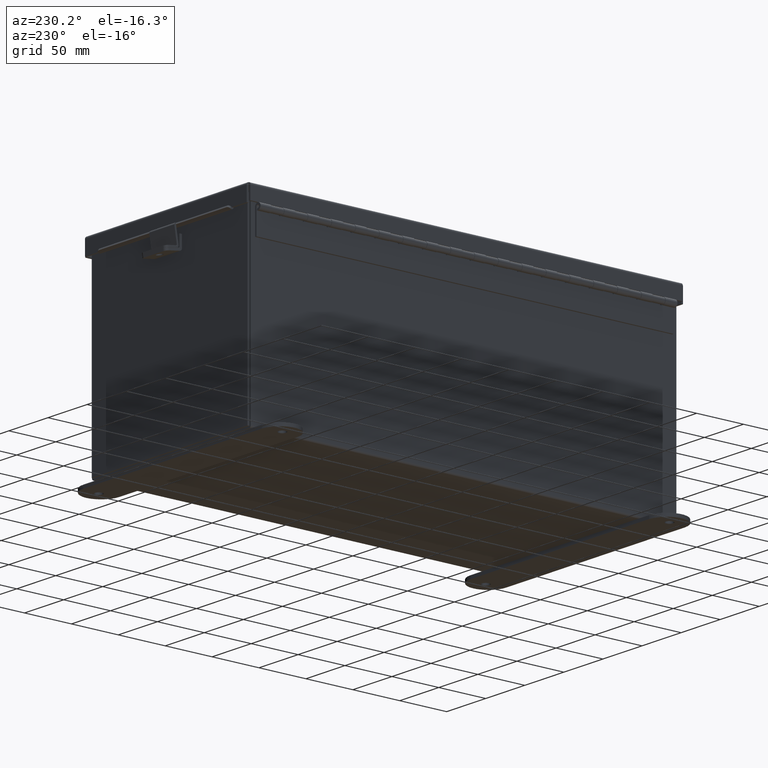
[diagram: clean part render]
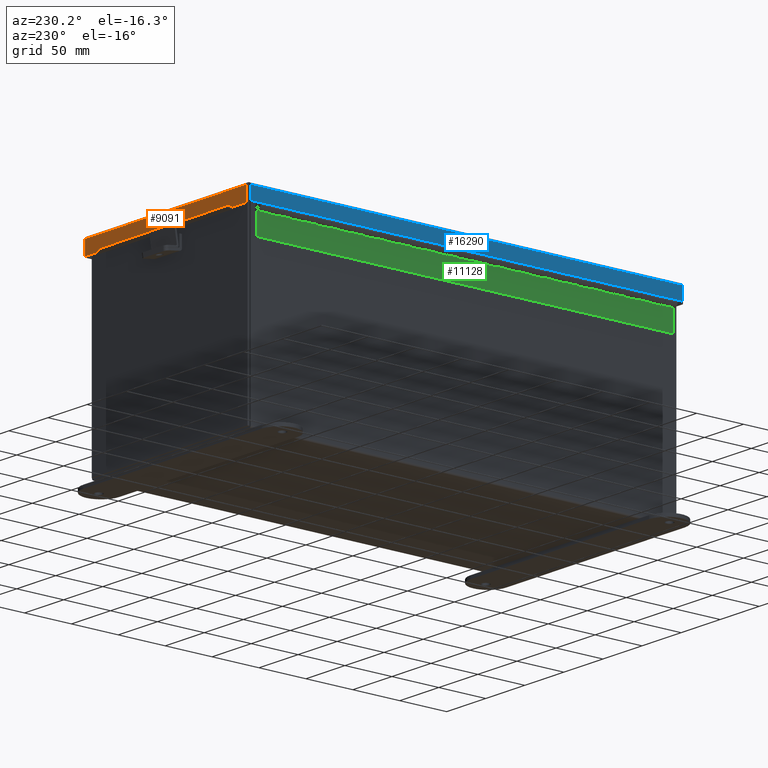
[diagram: same view with three faces highlighted in distinct colors, each labeled with its STEP entity id]
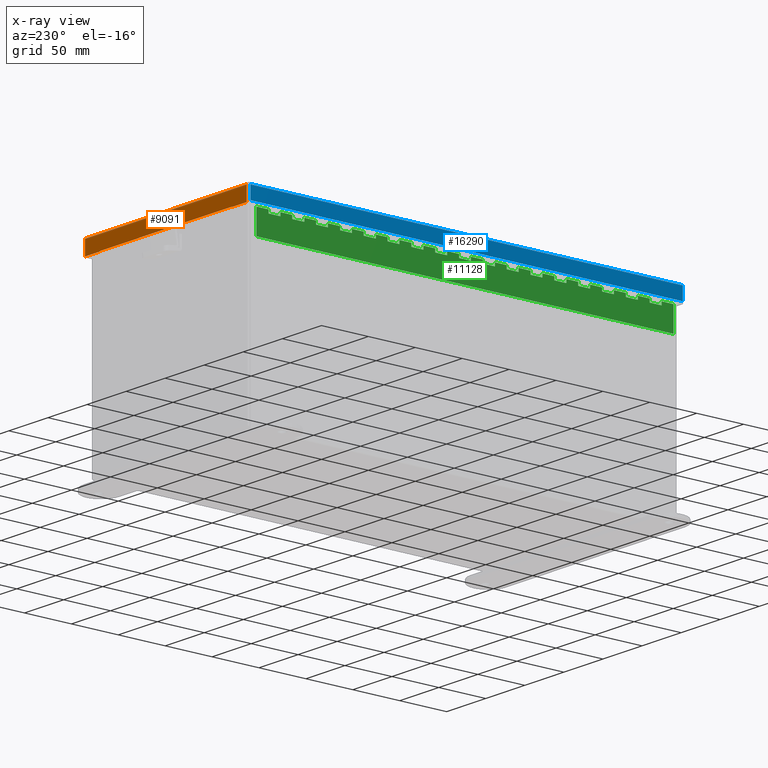
[diagram: x-ray of the same camera — body ghosted, the three highlighted faces saturated]
A machine part, auxiliary view with three faces highlighted in distinct colors.
The next image is the same camera in x-ray (body ghosted, the three faces saturated) — at least one of them is partly hidden behind the body in this view.
Their STEP definitions:

[orange] entity #9091 — the highlighted planar face has unit normal (-0, -1, -0).
#181 = CARTESIAN_POINT ( 'NONE',  ( 4.156250000000031100, 9.156250000000000000, 0.01299999999999901400 ) ) ;
#362 = VECTOR ( 'NONE', #1002, 39.37007874015748100 ) ;
#371 = ORIENTED_EDGE ( 'NONE', *, *, #8714, .T. ) ;
#672 = CARTESIAN_POINT ( 'NONE',  ( -4.074478932188157800, 9.156250000000000000, -3.278217592397115700E-014 ) ) ;
#934 = DIRECTION ( 'NONE',  ( -0.0000000000000000000, 3.569293475308496100E-015, 1.000000000000000000 ) ) ;
#1002 = DIRECTION ( 'NONE',  ( 1.000000000000000000, -1.279073152456795400E-030, 8.216084191471054600E-018 ) ) ;
#1072 = ORIENTED_EDGE ( 'NONE', *, *, #9066, .F. ) ;
#1364 = DIRECTION ( 'NONE',  ( 0.0000000000000000000, 3.569293475308496100E-015, 1.000000000000000000 ) ) ;
#1710 = CARTESIAN_POINT ( 'NONE',  ( 3.324478932188148900, 9.156250000000001800, 0.6122999999999994000 ) ) ;
#2406 = CARTESIAN_POINT ( 'NONE',  ( -4.268512490100411300E-018, 9.156250000000001800, 0.6122999999999994000 ) ) ;
#2596 = CARTESIAN_POINT ( 'NONE',  ( -3.324478932188148100, 9.156250000000001800, 0.5967115427318793200 ) ) ;
#2668 = PLANE ( 'NONE',  #12837 ) ;
#3467 = EDGE_CURVE ( 'NONE', #9286, #12418, #16808, .T. ) ;
#3538 = ORIENTED_EDGE ( 'NONE', *, *, #3467, .T. ) ;
#3921 = ORIENTED_EDGE ( 'NONE', *, *, #13332, .F. ) ;
#4167 = DIRECTION ( 'NONE',  ( 0.0000000000000000000, -3.569293475308496100E-015, -1.000000000000000000 ) ) ;
#4254 = LINE ( 'NONE', #1710, #15683 ) ;
#4561 = EDGE_CURVE ( 'NONE', #12713, #5659, #7419, .T. ) ;
#4761 = LINE ( 'NONE', #2406, #362 ) ;
#5189 = LINE ( 'NONE', #181, #12630 ) ;
#5372 = LINE ( 'NONE', #9956, #8866 ) ;
#5659 = VERTEX_POINT ( 'NONE', #2596 ) ;
#6149 = LINE ( 'NONE', #18805, #13610 ) ;
#6607 = CARTESIAN_POINT ( 'NONE',  ( -4.074478932188157800, 9.156250000000001800, 0.6123000000000015100 ) ) ;
#6865 = EDGE_CURVE ( 'NONE', #13250, #10626, #4761, .T. ) ;
#7419 = LINE ( 'NONE', #10310, #18906 ) ;
#7687 = CARTESIAN_POINT ( 'NONE',  ( 4.074478932188165800, 9.156250000000000000, 0.01300000000000010700 ) ) ;
#8190 = CARTESIAN_POINT ( 'NONE',  ( 3.324478932188148900, 9.156250000000001800, 0.6122999999999994000 ) ) ;
#8369 = EDGE_CURVE ( 'NONE', #13250, #12713, #4254, .T. ) ;
#8714 = EDGE_CURVE ( 'NONE', #12418, #12990, #10516, .T. ) ;
#8866 = VECTOR ( 'NONE', #13000, 39.37007874015748100 ) ;
#9029 = DIRECTION ( 'NONE',  ( -1.401985044024191200E-013, 1.027984367116126100E-029, -1.000000000000000000 ) ) ;
#9066 = EDGE_CURVE ( 'NONE', #5659, #12990, #5372, .T. ) ;
#9091 = ADVANCED_FACE ( 'NONE', ( #12823 ), #2668, .F. ) ;
#9286 = VERTEX_POINT ( 'NONE', #14987 ) ;
#9682 = ORIENTED_EDGE ( 'NONE', *, *, #9847, .F. ) ;
#9720 = EDGE_LOOP ( 'NONE', ( #17201, #18116, #3921, #9682, #3538, #371, #1072, #18878 ) ) ;
#9847 = EDGE_CURVE ( 'NONE', #9286, #16108, #5189, .T. ) ;
#9956 = CARTESIAN_POINT ( 'NONE',  ( -3.324478932188148100, 9.156250000000001800, 0.5967115427318793200 ) ) ;
#10310 = CARTESIAN_POINT ( 'NONE',  ( 3.324478932188146700, 9.156250000000001800, 0.5967115427318804300 ) ) ;
#10516 = LINE ( 'NONE', #12290, #14031 ) ;
#10626 = VERTEX_POINT ( 'NONE', #15945 ) ;
#11552 = CARTESIAN_POINT ( 'NONE',  ( 9.604153102725926100E-018, 9.156250000000000000, -3.278217592397115700E-014 ) ) ;
#12290 = CARTESIAN_POINT ( 'NONE',  ( -4.268512490100411300E-018, 9.156250000000001800, 0.6122999999999994000 ) ) ;
#12418 = VERTEX_POINT ( 'NONE', #6607 ) ;
#12630 = VECTOR ( 'NONE', #16523, 39.37007874015748100 ) ;
#12713 = VERTEX_POINT ( 'NONE', #19302 ) ;
#12823 = FACE_OUTER_BOUND ( 'NONE', #9720, .T. ) ;
#12837 = AXIS2_PLACEMENT_3D ( 'NONE', #11552, #13070, #4167 ) ;
#12990 = VERTEX_POINT ( 'NONE', #15058 ) ;
#13000 = DIRECTION ( 'NONE',  ( 0.0000000000000000000, -1.027984367116126100E-029, 1.000000000000000000 ) ) ;
#13070 = DIRECTION ( 'NONE',  ( 1.210602460523066100E-030, -1.000000000000000000, 3.569293475308496100E-015 ) ) ;
#13250 = VERTEX_POINT ( 'NONE', #8190 ) ;
#13332 = EDGE_CURVE ( 'NONE', #16108, #10626, #6149, .T. ) ;
#13610 = VECTOR ( 'NONE', #934, 39.37007874015748100 ) ;
#13813 = DIRECTION ( 'NONE',  ( 1.000000000000000000, -1.279073152456795400E-030, 8.216084191471054600E-018 ) ) ;
#14031 = VECTOR ( 'NONE', #13813, 39.37007874015748100 ) ;
#14824 = DIRECTION ( 'NONE',  ( -1.000000000000000000, 1.278004435517613800E-030, -0.0000000000000000000 ) ) ;
#14987 = CARTESIAN_POINT ( 'NONE',  ( -4.074478932188153400, 9.156250000000000000, 0.01300000000000010700 ) ) ;
#15058 = CARTESIAN_POINT ( 'NONE',  ( -3.324478932188146300, 9.156250000000001800, 0.6122999999999994000 ) ) ;
#15683 = VECTOR ( 'NONE', #9029, 39.37007874015748100 ) ;
#15945 = CARTESIAN_POINT ( 'NONE',  ( 4.074478932188161400, 9.156250000000001800, 0.6123000000000005100 ) ) ;
#16108 = VERTEX_POINT ( 'NONE', #7687 ) ;
#16323 = VECTOR ( 'NONE', #1364, 39.37007874015748100 ) ;
#16523 = DIRECTION ( 'NONE',  ( 1.000000000000000000, -1.278004435517613800E-030, -0.0000000000000000000 ) ) ;
#16808 = LINE ( 'NONE', #672, #16323 ) ;
#17201 = ORIENTED_EDGE ( 'NONE', *, *, #8369, .F. ) ;
#18116 = ORIENTED_EDGE ( 'NONE', *, *, #6865, .T. ) ;
#18805 = CARTESIAN_POINT ( 'NONE',  ( 4.074478932188161400, 9.156250000000000000, 0.0000000000000000000 ) ) ;
#18878 = ORIENTED_EDGE ( 'NONE', *, *, #4561, .F. ) ;
#18906 = VECTOR ( 'NONE', #14824, 39.37007874015748100 ) ;
#19302 = CARTESIAN_POINT ( 'NONE',  ( 3.324478932188144500, 9.156250000000001800, 0.5967115427318804300 ) ) ;

[blue] entity #16290 — the highlighted planar face has unit normal (1, -0, 0).
#21 = CARTESIAN_POINT ( 'NONE',  ( 4.156250000000019500, -9.074478932188133800, 0.5502999999999999000 ) ) ;
#1418 = ORIENTED_EDGE ( 'NONE', *, *, #11162, .T. ) ;
#1579 = LINE ( 'NONE', #11436, #5495 ) ;
#1587 = VERTEX_POINT ( 'NONE', #3594 ) ;
#2162 = DIRECTION ( 'NONE',  ( -1.000000000000000000, 7.614158368944349400E-031, 3.971430846686186000E-015 ) ) ;
#2191 = EDGE_CURVE ( 'NONE', #1587, #11382, #1579, .T. ) ;
#2375 = VECTOR ( 'NONE', #12836, 39.37007874015748100 ) ;
#2885 = EDGE_CURVE ( 'NONE', #13644, #11382, #13776, .T. ) ;
#3341 = VERTEX_POINT ( 'NONE', #10021 ) ;
#3594 = CARTESIAN_POINT ( 'NONE',  ( 4.156250000000024900, 9.074478932188133800, 0.5502999999999999000 ) ) ;
#3884 = DIRECTION ( 'NONE',  ( 3.971430846686186000E-015, -1.005797654156785100E-029, 1.000000000000000000 ) ) ;
#4142 = CARTESIAN_POINT ( 'NONE',  ( 4.156250000000021300, -9.074478932188133800, -1.092739197465705300E-015 ) ) ;
#4866 = ORIENTED_EDGE ( 'NONE', *, *, #11281, .F. ) ;
#5050 = CARTESIAN_POINT ( 'NONE',  ( 4.156250000000025800, 2.134256245050205600E-018, -1.748382715945128500E-014 ) ) ;
#5495 = VECTOR ( 'NONE', #14268, 39.37007874015748100 ) ;
#5832 = VECTOR ( 'NONE', #3884, 39.37007874015748100 ) ;
#6025 = CARTESIAN_POINT ( 'NONE',  ( 4.156250000000025800, -9.074478932188133800, 0.01299999999999901400 ) ) ;
#7178 = CARTESIAN_POINT ( 'NONE',  ( 4.156250000000031100, -9.156250000000000000, 0.01299999999999901400 ) ) ;
#10021 = CARTESIAN_POINT ( 'NONE',  ( 4.156250000000031100, 9.074478932188133800, 0.01299999999999901400 ) ) ;
#10171 = DIRECTION ( 'NONE',  ( 1.278004435517692100E-030, -1.000000000000000000, 1.018123605800868400E-029 ) ) ;
#10505 = VECTOR ( 'NONE', #10171, 39.37007874015748100 ) ;
#11052 = PLANE ( 'NONE',  #15004 ) ;
#11060 = EDGE_LOOP ( 'NONE', ( #4866, #1418, #14549, #12238 ) ) ;
#11162 = EDGE_CURVE ( 'NONE', #3341, #1587, #13310, .T. ) ;
#11281 = EDGE_CURVE ( 'NONE', #3341, #13644, #18488, .T. ) ;
#11326 = CARTESIAN_POINT ( 'NONE',  ( 4.156250000000025800, 9.074478932188133800, -1.748382715945128500E-014 ) ) ;
#11382 = VERTEX_POINT ( 'NONE', #21 ) ;
#11436 = CARTESIAN_POINT ( 'NONE',  ( 4.156250000000024900, -1.067128122525102800E-017, 0.5502999999999999000 ) ) ;
#12238 = ORIENTED_EDGE ( 'NONE', *, *, #2885, .F. ) ;
#12536 = DIRECTION ( 'NONE',  ( 3.971430846686186000E-015, -1.005797654156785100E-029, 1.000000000000000000 ) ) ;
#12836 = DIRECTION ( 'NONE',  ( 3.971430846686186000E-015, -1.005797654156785100E-029, 1.000000000000000000 ) ) ;
#13310 = LINE ( 'NONE', #11326, #2375 ) ;
#13644 = VERTEX_POINT ( 'NONE', #6025 ) ;
#13776 = LINE ( 'NONE', #4142, #5832 ) ;
#14268 = DIRECTION ( 'NONE',  ( 1.278004435517692100E-030, -1.000000000000000000, 1.018123605800868400E-029 ) ) ;
#14549 = ORIENTED_EDGE ( 'NONE', *, *, #2191, .T. ) ;
#15004 = AXIS2_PLACEMENT_3D ( 'NONE', #5050, #2162, #12536 ) ;
#16290 = ADVANCED_FACE ( 'NONE', ( #17964 ), #11052, .F. ) ;
#17964 = FACE_OUTER_BOUND ( 'NONE', #11060, .T. ) ;
#18488 = LINE ( 'NONE', #7178, #10505 ) ;

[green] entity #11128 — the highlighted planar face has unit normal (1, -0, 0).
#41 = CARTESIAN_POINT ( 'NONE',  ( 1.202013117212275900E-013, 17.00000000000000000, 0.0000000000000000000 ) ) ;
#67 = ORIENTED_EDGE ( 'NONE', *, *, #3782, .F. ) ;
#116 = LINE ( 'NONE', #12136, #1063 ) ;
#145 = CARTESIAN_POINT ( 'NONE',  ( 0.1364999999999989300, 5.000000000000000000, 8.195543980992789300E-015 ) ) ;
#189 = DIRECTION ( 'NONE',  ( -1.092695613247542100E-028, 1.000000000000000000, -1.461323557691785800E-030 ) ) ;
#241 = ORIENTED_EDGE ( 'NONE', *, *, #11395, .F. ) ;
#323 = EDGE_CURVE ( 'NONE', #15768, #9078, #16563, .T. ) ;
#326 = CARTESIAN_POINT ( 'NONE',  ( 0.1365000000000000400, 12.00000000000000200, 0.0000000000000000000 ) ) ;
#346 = LINE ( 'NONE', #15674, #3819 ) ;
#401 = EDGE_CURVE ( 'NONE', #5974, #6972, #18694, .T. ) ;
#470 = DIRECTION ( 'NONE',  ( -1.000000000000000000, 1.092695613247542100E-028, 3.549874073494553100E-029 ) ) ;
#578 = ORIENTED_EDGE ( 'NONE', *, *, #16580, .T. ) ;
#595 = CARTESIAN_POINT ( 'NONE',  ( 0.2729999999999837000, 5.500000000000001800, 8.195543980992789300E-015 ) ) ;
#680 = LINE ( 'NONE', #17570, #4163 ) ;
#729 = CARTESIAN_POINT ( 'NONE',  ( 0.2729999999999989700, 5.000000000000000000, 8.195543980992789300E-015 ) ) ;
#738 = VECTOR ( 'NONE', #19193, 39.37007874015748100 ) ;
#740 = DIRECTION ( 'NONE',  ( -1.000000000000000000, 1.092695613247542100E-028, 3.549874073494553100E-029 ) ) ;
#777 = VERTEX_POINT ( 'NONE', #10730 ) ;
#778 = DIRECTION ( 'NONE',  ( -1.000000000000000000, 1.092695613247542100E-028, 3.549874073494553100E-029 ) ) ;
#805 = VECTOR ( 'NONE', #3625, 39.37007874015748100 ) ;
#828 = DIRECTION ( 'NONE',  ( -1.092695613247542100E-028, 1.000000000000000000, -1.461323557691785800E-030 ) ) ;
#865 = EDGE_CURVE ( 'NONE', #8922, #17374, #11141, .T. ) ;
#935 = VERTEX_POINT ( 'NONE', #18483 ) ;
#944 = CARTESIAN_POINT ( 'NONE',  ( 0.1364999999999836300, 6.500000000000000900, 0.0000000000000000000 ) ) ;
#1013 = EDGE_CURVE ( 'NONE', #15729, #12504, #5308, .T. ) ;
#1026 = CARTESIAN_POINT ( 'NONE',  ( 0.2730000000000000800, -9.000000000000001800, 8.195543980992789300E-015 ) ) ;
#1028 = VERTEX_POINT ( 'NONE', #16196 ) ;
#1029 = VECTOR ( 'NONE', #8196, 39.37007874015748100 ) ;
#1032 = VECTOR ( 'NONE', #1164, 39.37007874015748100 ) ;
#1033 = VERTEX_POINT ( 'NONE', #4983 ) ;
#1047 = CARTESIAN_POINT ( 'NONE',  ( 1.354996604857474700E-013, 3.999999999999991600, 0.0000000000000000000 ) ) ;
#1063 = VECTOR ( 'NONE', #13651, 39.37007874015748100 ) ;
#1098 = LINE ( 'NONE', #15531, #12465 ) ;
#1107 = ORIENTED_EDGE ( 'NONE', *, *, #7369, .T. ) ;
#1135 = VECTOR ( 'NONE', #7432, 39.37007874015748100 ) ;
#1164 = DIRECTION ( 'NONE',  ( -1.000000000000000000, 8.005415366049243300E-015, 3.549874073494553100E-029 ) ) ;
#1175 = ORIENTED_EDGE ( 'NONE', *, *, #6266, .F. ) ;
#1192 = VECTOR ( 'NONE', #189, 39.37007874015748100 ) ;
#1219 = VECTOR ( 'NONE', #7730, 39.37007874015748100 ) ;
#1256 = DIRECTION ( 'NONE',  ( -1.092695613247542100E-028, 1.000000000000000000, -1.461323557691785800E-030 ) ) ;
#1258 = CARTESIAN_POINT ( 'NONE',  ( 0.2730000000000000800, 13.50000000000000200, 8.195543980992789300E-015 ) ) ;
#1343 = DIRECTION ( 'NONE',  ( -1.000000000000000000, 1.092695613247542100E-028, 3.549874073494553100E-029 ) ) ;
#1401 = CARTESIAN_POINT ( 'NONE',  ( 0.1365000000000000400, 1.500000000000000900, 8.195543980992789300E-015 ) ) ;
#1511 = VECTOR ( 'NONE', #13325, 39.37007874015748100 ) ;
#1518 = CARTESIAN_POINT ( 'NONE',  ( 0.1365000000000000400, 10.00000000000000000, 0.0000000000000000000 ) ) ;
#1532 = DIRECTION ( 'NONE',  ( -1.092695613247542100E-028, 1.000000000000000000, -1.461323557691785800E-030 ) ) ;
#1584 = ORIENTED_EDGE ( 'NONE', *, *, #4178, .F. ) ;
#1597 = DIRECTION ( 'NONE',  ( -1.000000000000000000, 1.092695613247542100E-028, 3.549874073494553100E-029 ) ) ;
#1602 = VERTEX_POINT ( 'NONE', #11970 ) ;
#1632 = LINE ( 'NONE', #6999, #9050 ) ;
#1635 = EDGE_CURVE ( 'NONE', #15768, #16924, #13928, .T. ) ;
#1678 = VECTOR ( 'NONE', #1532, 39.37007874015748100 ) ;
#1680 = DIRECTION ( 'NONE',  ( -1.000000000000000000, 8.005415366049243300E-015, 3.549874073494553100E-029 ) ) ;
#1724 = CARTESIAN_POINT ( 'NONE',  ( 1.136499999999983900, 17.50000000000000000, 8.195543980992789300E-015 ) ) ;
#1772 = ORIENTED_EDGE ( 'NONE', *, *, #18786, .T. ) ;
#1827 = ORIENTED_EDGE ( 'NONE', *, *, #6106, .F. ) ;
#1870 = VECTOR ( 'NONE', #17368, 39.37007874015748100 ) ;
#2043 = CARTESIAN_POINT ( 'NONE',  ( 0.0000000000000000000, 0.5000000000000017800, 0.0000000000000000000 ) ) ;
#2049 = LINE ( 'NONE', #19358, #13448 ) ;
#2081 = ORIENTED_EDGE ( 'NONE', *, *, #9707, .F. ) ;
#2091 = VECTOR ( 'NONE', #17690, 39.37007874015748100 ) ;
#2139 = CARTESIAN_POINT ( 'NONE',  ( 0.1365000000000000400, 0.5000000000000017800, 0.0000000000000000000 ) ) ;
#2175 = LINE ( 'NONE', #12065, #13091 ) ;
#2177 = VERTEX_POINT ( 'NONE', #14894 ) ;
#2185 = CARTESIAN_POINT ( 'NONE',  ( 1.136500000000000300, 0.0000000000000000000, 8.195543980992789300E-015 ) ) ;
#2200 = ORIENTED_EDGE ( 'NONE', *, *, #3836, .F. ) ;
#2207 = VERTEX_POINT ( 'NONE', #19195 ) ;
#2243 = ORIENTED_EDGE ( 'NONE', *, *, #11067, .F. ) ;
#2248 = DIRECTION ( 'NONE',  ( -1.092695613247542100E-028, 1.000000000000000000, -1.461323557691785800E-030 ) ) ;
#2259 = CARTESIAN_POINT ( 'NONE',  ( 0.2730000000000000800, 12.50000000000000000, 0.0000000000000000000 ) ) ;
#2377 = PLANE ( 'NONE',  #18842 ) ;
#2387 = VECTOR ( 'NONE', #7931, 39.37007874015748100 ) ;
#2389 = EDGE_CURVE ( 'NONE', #13154, #6585, #17655, .T. ) ;
#2409 = ORIENTED_EDGE ( 'NONE', *, *, #6708, .F. ) ;
#2481 = ORIENTED_EDGE ( 'NONE', *, *, #15415, .F. ) ;
#2547 = LINE ( 'NONE', #19081, #2091 ) ;
#2551 = ORIENTED_EDGE ( 'NONE', *, *, #11178, .T. ) ;
#2618 = LINE ( 'NONE', #12211, #18021 ) ;
#2632 = DIRECTION ( 'NONE',  ( -1.000000000000000000, 8.005415366049243300E-015, 3.549874073494553100E-029 ) ) ;
#2721 = EDGE_CURVE ( 'NONE', #11514, #13033, #8645, .T. ) ;
#2738 = CARTESIAN_POINT ( 'NONE',  ( 0.1365000000000000400, 9.000000000000001800, 8.195543980992789300E-015 ) ) ;
#2794 = DIRECTION ( 'NONE',  ( -1.000000000000000000, 1.092695613247542100E-028, 3.549874073494553100E-029 ) ) ;
#2800 = ORIENTED_EDGE ( 'NONE', *, *, #2926, .T. ) ;
#2866 = ORIENTED_EDGE ( 'NONE', *, *, #14112, .F. ) ;
#2889 = LINE ( 'NONE', #9607, #10337 ) ;
#2917 = CARTESIAN_POINT ( 'NONE',  ( 0.1365000000000000400, 0.0000000000000000000, 0.0000000000000000000 ) ) ;
#2921 = VERTEX_POINT ( 'NONE', #16177 ) ;
#2926 = EDGE_CURVE ( 'NONE', #5726, #3980, #9337, .T. ) ;
#2937 = VERTEX_POINT ( 'NONE', #5322 ) ;
#2941 = CARTESIAN_POINT ( 'NONE',  ( 0.2730000000000000800, -6.999999999999998200, 8.195543980992789300E-015 ) ) ;
#2975 = VERTEX_POINT ( 'NONE', #3219 ) ;
#3043 = DIRECTION ( 'NONE',  ( -1.000000000000000000, 1.092695613247542100E-028, 3.549874073494553100E-029 ) ) ;
#3053 = VERTEX_POINT ( 'NONE', #16573 ) ;
#3116 = VERTEX_POINT ( 'NONE', #14940 ) ;
#3158 = LINE ( 'NONE', #13944, #18577 ) ;
#3180 = ORIENTED_EDGE ( 'NONE', *, *, #11231, .F. ) ;
#3189 = DIRECTION ( 'NONE',  ( -1.000000000000000000, 1.092695613247542100E-028, 3.549874073494553100E-029 ) ) ;
#3219 = CARTESIAN_POINT ( 'NONE',  ( 0.1364999999999836300, 5.999999999999999100, 0.0000000000000000000 ) ) ;
#3233 = CARTESIAN_POINT ( 'NONE',  ( 0.1365000000000000400, 0.0000000000000000000, 0.0000000000000000000 ) ) ;
#3269 = VECTOR ( 'NONE', #16750, 39.37007874015748100 ) ;
#3283 = EDGE_CURVE ( 'NONE', #12230, #10389, #8159, .T. ) ;
#3285 = EDGE_CURVE ( 'NONE', #7579, #15729, #16106, .T. ) ;
#3323 = DIRECTION ( 'NONE',  ( 1.000000000000000000, -1.092695613247542100E-028, -3.549874073494553100E-029 ) ) ;
#3442 = CARTESIAN_POINT ( 'NONE',  ( 1.365923996832131500E-013, 10.00000000000000000, 0.0000000000000000000 ) ) ;
#3453 = ORIENTED_EDGE ( 'NONE', *, *, #5193, .F. ) ;
#3498 = CARTESIAN_POINT ( 'NONE',  ( 0.2730000000000000800, 7.999999999999997300, 0.0000000000000000000 ) ) ;
#3505 = VERTEX_POINT ( 'NONE', #1401 ) ;
#3540 = VECTOR ( 'NONE', #10750, 39.37007874015748100 ) ;
#3572 = VERTEX_POINT ( 'NONE', #10438 ) ;
#3583 = LINE ( 'NONE', #1047, #11026 ) ;
#3625 = DIRECTION ( 'NONE',  ( -1.092695613247542100E-028, 1.000000000000000000, -1.461323557691785800E-030 ) ) ;
#3694 = EDGE_CURVE ( 'NONE', #2207, #9448, #16561, .T. ) ;
#3735 = EDGE_LOOP ( 'NONE', ( #16190, #14140, #13800, #1107, #19182, #5961, #10930, #10341, #1772, #18514, #10274, #3816, #12514, #5899, #4342, #5084, #10615, #5793, #2866, #241, #578, #7127, #14530, #11868, #9862, #11043, #8014, #2481, #2551, #12225, #18932, #1827, #17720, #10101, #10173, #3453, #4803, #7532, #9224, #2200, #15999, #14732, #6407, #1175, #14141, #3943, #12173, #3180, #5317, #14360, #12622, #15552, #15715, #2243, #9357, #4544, #7201, #5032, #2081, #2409, #2800, #18160, #11996, #18555, #17448, #17341, #7819, #67, #13628, #12300, #1584, #19149 ) ) ;
#3779 = VERTEX_POINT ( 'NONE', #2738 ) ;
#3782 = EDGE_CURVE ( 'NONE', #2921, #7579, #15154, .T. ) ;
#3816 = ORIENTED_EDGE ( 'NONE', *, *, #5692, .F. ) ;
#3819 = VECTOR ( 'NONE', #5213, 39.37007874015748100 ) ;
#3821 = CARTESIAN_POINT ( 'NONE',  ( 0.0000000000000000000, 8.500000000000003600, 0.0000000000000000000 ) ) ;
#3836 = EDGE_CURVE ( 'NONE', #11514, #15574, #14208, .T. ) ;
#3854 = VERTEX_POINT ( 'NONE', #19152 ) ;
#3869 = DIRECTION ( 'NONE',  ( -3.549874073494553100E-029, 1.461323557691415200E-030, -1.000000000000000000 ) ) ;
#3873 = CARTESIAN_POINT ( 'NONE',  ( 0.1365000000000000400, 2.500000000000000000, 0.0000000000000000000 ) ) ;
#3943 = ORIENTED_EDGE ( 'NONE', *, *, #12569, .F. ) ;
#3965 = LINE ( 'NONE', #6093, #7451 ) ;
#3980 = VERTEX_POINT ( 'NONE', #18832 ) ;
#4007 = DIRECTION ( 'NONE',  ( -1.000000000000000000, 1.092695613247542100E-028, 3.549874073494553100E-029 ) ) ;
#4050 = LINE ( 'NONE', #18929, #7542 ) ;
#4080 = DIRECTION ( 'NONE',  ( -1.000000000000000000, 8.005415366049243300E-015, 3.549874073494553100E-029 ) ) ;
#4099 = EDGE_CURVE ( 'NONE', #3116, #2937, #2547, .T. ) ;
#4163 = VECTOR ( 'NONE', #7122, 39.37007874015748100 ) ;
#4178 = EDGE_CURVE ( 'NONE', #9078, #6323, #1632, .T. ) ;
#4181 = EDGE_CURVE ( 'NONE', #17082, #16122, #5543, .T. ) ;
#4342 = ORIENTED_EDGE ( 'NONE', *, *, #8075, .F. ) ;
#4452 = VECTOR ( 'NONE', #17561, 39.37007874015748100 ) ;
#4465 = CARTESIAN_POINT ( 'NONE',  ( 0.2730000000000000800, 11.99999999999999800, 0.0000000000000000000 ) ) ;
#4524 = LINE ( 'NONE', #15508, #15963 ) ;
#4544 = ORIENTED_EDGE ( 'NONE', *, *, #17165, .F. ) ;
#4608 = CARTESIAN_POINT ( 'NONE',  ( 0.0000000000000000000, 1.500000000000000900, 8.195543980992789300E-015 ) ) ;
#4633 = VECTOR ( 'NONE', #5946, 39.37007874015748100 ) ;
#4803 = ORIENTED_EDGE ( 'NONE', *, *, #4181, .T. ) ;
#4943 = LINE ( 'NONE', #14135, #1029 ) ;
#4967 = VECTOR ( 'NONE', #7472, 39.37007874015748100 ) ;
#4983 = CARTESIAN_POINT ( 'NONE',  ( 0.2729999999999837000, 5.999999999999999100, 0.0000000000000000000 ) ) ;
#4992 = CARTESIAN_POINT ( 'NONE',  ( 0.2729999999999837000, 6.999999999999998200, 8.195543980992789300E-015 ) ) ;
#4994 = LINE ( 'NONE', #6257, #16440 ) ;
#5032 = ORIENTED_EDGE ( 'NONE', *, *, #13176, .F. ) ;
#5084 = ORIENTED_EDGE ( 'NONE', *, *, #7455, .F. ) ;
#5088 = LINE ( 'NONE', #11862, #4633 ) ;
#5119 = CARTESIAN_POINT ( 'NONE',  ( -1.639108796198557900E-014, 16.50000000000000000, 0.0000000000000000000 ) ) ;
#5130 = LINE ( 'NONE', #10417, #1678 ) ;
#5170 = EDGE_CURVE ( 'NONE', #8524, #1033, #2049, .T. ) ;
#5193 = EDGE_CURVE ( 'NONE', #17082, #13118, #9962, .T. ) ;
#5213 = DIRECTION ( 'NONE',  ( -1.092695613247542100E-028, 1.000000000000000000, -1.461323557691785800E-030 ) ) ;
#5216 = DIRECTION ( 'NONE',  ( -1.000000000000000000, 8.005415366049243300E-015, 3.549874073494553100E-029 ) ) ;
#5308 = LINE ( 'NONE', #19218, #8807 ) ;
#5317 = ORIENTED_EDGE ( 'NONE', *, *, #12537, .T. ) ;
#5320 = LINE ( 'NONE', #5476, #16783 ) ;
#5322 = CARTESIAN_POINT ( 'NONE',  ( 0.1365000000000000400, 4.499999999999993800, 0.0000000000000000000 ) ) ;
#5345 = DIRECTION ( 'NONE',  ( -1.000000000000000000, 1.092695613247542400E-028, 3.549874073494553700E-029 ) ) ;
#5376 = VECTOR ( 'NONE', #5345, 39.37007874015748100 ) ;
#5429 = LINE ( 'NONE', #5949, #4967 ) ;
#5456 = DIRECTION ( 'NONE',  ( -1.092695613247542100E-028, 1.000000000000000000, -1.461323557691785800E-030 ) ) ;
#5476 = CARTESIAN_POINT ( 'NONE',  ( 0.1365000000000000400, 0.0000000000000000000, 0.0000000000000000000 ) ) ;
#5477 = VECTOR ( 'NONE', #6589, 39.37007874015748100 ) ;
#5543 = LINE ( 'NONE', #12809, #8594 ) ;
#5631 = CARTESIAN_POINT ( 'NONE',  ( 0.2730000000000000800, -0.9999999999999992200, 8.195543980992789300E-015 ) ) ;
#5691 = DIRECTION ( 'NONE',  ( -1.000000000000000000, 1.092695613247542100E-028, 3.549874073494553100E-029 ) ) ;
#5692 = EDGE_CURVE ( 'NONE', #3854, #7932, #12947, .T. ) ;
#5726 = VERTEX_POINT ( 'NONE', #8875 ) ;
#5731 = VERTEX_POINT ( 'NONE', #17830 ) ;
#5775 = VERTEX_POINT ( 'NONE', #16384 ) ;
#5776 = EDGE_CURVE ( 'NONE', #13669, #1028, #15074, .T. ) ;
#5793 = ORIENTED_EDGE ( 'NONE', *, *, #18344, .F. ) ;
#5845 = FACE_OUTER_BOUND ( 'NONE', #3735, .T. ) ;
#5847 = EDGE_CURVE ( 'NONE', #13828, #8756, #10622, .T. ) ;
#5877 = CARTESIAN_POINT ( 'NONE',  ( 0.1365000000000000400, 0.0000000000000000000, 0.0000000000000000000 ) ) ;
#5899 = ORIENTED_EDGE ( 'NONE', *, *, #15258, .F. ) ;
#5946 = DIRECTION ( 'NONE',  ( -1.092695613247542100E-028, 1.000000000000000000, -1.461323557691785800E-030 ) ) ;
#5949 = CARTESIAN_POINT ( 'NONE',  ( 1.202013117212275900E-013, 5.999999999999999100, 0.0000000000000000000 ) ) ;
#5961 = ORIENTED_EDGE ( 'NONE', *, *, #9218, .F. ) ;
#5967 = VERTEX_POINT ( 'NONE', #18308 ) ;
#5974 = VERTEX_POINT ( 'NONE', #13771 ) ;
#6030 = CARTESIAN_POINT ( 'NONE',  ( 0.1365000000000000400, 12.50000000000000000, 0.0000000000000000000 ) ) ;
#6093 = CARTESIAN_POINT ( 'NONE',  ( 0.0000000000000000000, 15.50000000000000200, 8.195543980992789300E-015 ) ) ;
#6106 = EDGE_CURVE ( 'NONE', #5967, #6480, #12931, .T. ) ;
#6112 = EDGE_CURVE ( 'NONE', #5967, #7601, #1098, .T. ) ;
#6117 = CARTESIAN_POINT ( 'NONE',  ( 0.2730000000000000800, 0.0000000000000000000, 0.0000000000000000000 ) ) ;
#6170 = CARTESIAN_POINT ( 'NONE',  ( 0.1365000000000000400, 0.0000000000000000000, 0.0000000000000000000 ) ) ;
#6201 = VECTOR ( 'NONE', #1680, 39.37007874015748100 ) ;
#6257 = CARTESIAN_POINT ( 'NONE',  ( 1.354996604857474700E-013, 5.000000000000004400, 0.0000000000000000000 ) ) ;
#6266 = EDGE_CURVE ( 'NONE', #9928, #13828, #6648, .T. ) ;
#6282 = VECTOR ( 'NONE', #8718, 39.37007874015748100 ) ;
#6323 = VERTEX_POINT ( 'NONE', #8534 ) ;
#6337 = LINE ( 'NONE', #3442, #2387 ) ;
#6407 = ORIENTED_EDGE ( 'NONE', *, *, #5847, .F. ) ;
#6480 = VERTEX_POINT ( 'NONE', #11890 ) ;
#6585 = VERTEX_POINT ( 'NONE', #13609 ) ;
#6589 = DIRECTION ( 'NONE',  ( -1.092695613247542100E-028, 1.000000000000000000, -1.461323557691785800E-030 ) ) ;
#6593 = EDGE_CURVE ( 'NONE', #8582, #8340, #4994, .T. ) ;
#6634 = CARTESIAN_POINT ( 'NONE',  ( 0.1365000000000000400, 3.999999999999991600, 0.0000000000000000000 ) ) ;
#6642 = CARTESIAN_POINT ( 'NONE',  ( 1.202013117212275900E-013, 7.000000000000002700, 0.0000000000000000000 ) ) ;
#6648 = LINE ( 'NONE', #1026, #10145 ) ;
#6676 = EDGE_CURVE ( 'NONE', #6323, #3505, #8967, .T. ) ;
#6699 = CARTESIAN_POINT ( 'NONE',  ( 1.354996604857474700E-013, 2.000000000000002700, 0.0000000000000000000 ) ) ;
#6708 = EDGE_CURVE ( 'NONE', #5726, #6738, #3158, .T. ) ;
#6719 = CARTESIAN_POINT ( 'NONE',  ( 0.2730000000000000800, -2.000000000000002700, 0.0000000000000000000 ) ) ;
#6721 = CARTESIAN_POINT ( 'NONE',  ( 1.136499999999983900, 17.50000000000000000, 8.195543980992789300E-015 ) ) ;
#6738 = VERTEX_POINT ( 'NONE', #12541 ) ;
#6754 = CARTESIAN_POINT ( 'NONE',  ( 0.1365000000000000400, 0.0000000000000000000, 0.0000000000000000000 ) ) ;
#6777 = VECTOR ( 'NONE', #15612, 39.37007874015748100 ) ;
#6957 = VECTOR ( 'NONE', #1343, 39.37007874015748100 ) ;
#6972 = VERTEX_POINT ( 'NONE', #19012 ) ;
#6986 = DIRECTION ( 'NONE',  ( -1.092695613247542100E-028, 1.000000000000000000, -1.461323557691785800E-030 ) ) ;
#6999 = CARTESIAN_POINT ( 'NONE',  ( 1.354996604857474700E-013, 0.9999999999999992200, 0.0000000000000000000 ) ) ;
#7012 = VECTOR ( 'NONE', #16327, 39.37007874015748100 ) ;
#7017 = VERTEX_POINT ( 'NONE', #17667 ) ;
#7122 = DIRECTION ( 'NONE',  ( -1.092695613247542100E-028, 1.000000000000000000, -1.461323557691785800E-030 ) ) ;
#7127 = ORIENTED_EDGE ( 'NONE', *, *, #11938, .F. ) ;
#7170 = EDGE_CURVE ( 'NONE', #5731, #1602, #116, .T. ) ;
#7197 = CARTESIAN_POINT ( 'NONE',  ( 0.2729999999999837000, -15.00000000000000700, 8.195543980992789300E-015 ) ) ;
#7201 = ORIENTED_EDGE ( 'NONE', *, *, #4099, .T. ) ;
#7280 = VECTOR ( 'NONE', #19025, 39.37007874015748100 ) ;
#7369 = EDGE_CURVE ( 'NONE', #6972, #7847, #17127, .T. ) ;
#7397 = CARTESIAN_POINT ( 'NONE',  ( 0.1365000000000000400, 13.00000000000000200, 8.195543980992789300E-015 ) ) ;
#7401 = EDGE_CURVE ( 'NONE', #8756, #13033, #7780, .T. ) ;
#7424 = EDGE_CURVE ( 'NONE', #2975, #8162, #346, .T. ) ;
#7432 = DIRECTION ( 'NONE',  ( -1.092695613247542100E-028, 1.000000000000000000, -1.461323557691785800E-030 ) ) ;
#7451 = VECTOR ( 'NONE', #16605, 39.37007874015748100 ) ;
#7455 = EDGE_CURVE ( 'NONE', #2177, #3572, #19270, .T. ) ;
#7456 = DIRECTION ( 'NONE',  ( -1.000000000000000000, 8.005415366049243300E-015, 3.549874073494553100E-029 ) ) ;
#7472 = DIRECTION ( 'NONE',  ( -1.000000000000000000, 8.005415366049243300E-015, 3.549874073494553100E-029 ) ) ;
#7532 = ORIENTED_EDGE ( 'NONE', *, *, #9130, .F. ) ;
#7542 = VECTOR ( 'NONE', #11408, 39.37007874015748100 ) ;
#7579 = VERTEX_POINT ( 'NONE', #15924 ) ;
#7601 = VERTEX_POINT ( 'NONE', #10041 ) ;
#7624 = DIRECTION ( 'NONE',  ( -1.092695613247542100E-028, 1.000000000000000000, -1.461323557691785800E-030 ) ) ;
#7697 = LINE ( 'NONE', #8568, #19187 ) ;
#7730 = DIRECTION ( 'NONE',  ( -1.092695613247542100E-028, 1.000000000000000000, -1.461323557691785800E-030 ) ) ;
#7780 = LINE ( 'NONE', #11137, #15721 ) ;
#7812 = CARTESIAN_POINT ( 'NONE',  ( 0.0000000000000000000, 0.0000000000000000000, 0.0000000000000000000 ) ) ;
#7819 = ORIENTED_EDGE ( 'NONE', *, *, #3285, .F. ) ;
#7847 = VERTEX_POINT ( 'NONE', #1724 ) ;
#7882 = DIRECTION ( 'NONE',  ( -1.092695613247542100E-028, 1.000000000000000000, -1.461323557691785800E-030 ) ) ;
#7931 = DIRECTION ( 'NONE',  ( -1.000000000000000000, 8.005415366049243300E-015, 3.549874073494553100E-029 ) ) ;
#7932 = VERTEX_POINT ( 'NONE', #10808 ) ;
#7952 = LINE ( 'NONE', #16213, #10966 ) ;
#8014 = ORIENTED_EDGE ( 'NONE', *, *, #17670, .F. ) ;
#8058 = VERTEX_POINT ( 'NONE', #6634 ) ;
#8075 = EDGE_CURVE ( 'NONE', #3572, #777, #4943, .T. ) ;
#8085 = DIRECTION ( 'NONE',  ( -1.000000000000000000, 1.092695613247542100E-028, 3.549874073494553100E-029 ) ) ;
#8120 = CARTESIAN_POINT ( 'NONE',  ( 0.1365000000000000400, 13.50000000000000200, 8.195543980992789300E-015 ) ) ;
#8159 = LINE ( 'NONE', #6170, #738 ) ;
#8162 = VERTEX_POINT ( 'NONE', #944 ) ;
#8196 = DIRECTION ( 'NONE',  ( -1.000000000000000000, 8.005415366049243300E-015, 3.549874073494553100E-029 ) ) ;
#8242 = VECTOR ( 'NONE', #18507, 39.37007874015748100 ) ;
#8293 = VERTEX_POINT ( 'NONE', #1518 ) ;
#8339 = CARTESIAN_POINT ( 'NONE',  ( 0.1364999999999836300, 5.500000000000001800, 8.195543980992789300E-015 ) ) ;
#8340 = VERTEX_POINT ( 'NONE', #145 ) ;
#8407 = LINE ( 'NONE', #10147, #11878 ) ;
#8409 = DIRECTION ( 'NONE',  ( -1.092695613247542100E-028, 1.000000000000000000, -1.461323557691785800E-030 ) ) ;
#8480 = EDGE_CURVE ( 'NONE', #13118, #8293, #6337, .T. ) ;
#8524 = VERTEX_POINT ( 'NONE', #595 ) ;
#8534 = CARTESIAN_POINT ( 'NONE',  ( 0.1365000000000000400, 0.9999999999999992200, 8.195543980992789300E-015 ) ) ;
#8568 = CARTESIAN_POINT ( 'NONE',  ( 0.1365000000000000400, 0.0000000000000000000, 0.0000000000000000000 ) ) ;
#8576 = DIRECTION ( 'NONE',  ( -1.092695613247542100E-028, 1.000000000000000000, -1.461323557691785800E-030 ) ) ;
#8582 = VERTEX_POINT ( 'NONE', #729 ) ;
#8594 = VECTOR ( 'NONE', #12007, 39.37007874015748100 ) ;
#8645 = LINE ( 'NONE', #3821, #13069 ) ;
#8657 = VERTEX_POINT ( 'NONE', #18798 ) ;
#8672 = EDGE_CURVE ( 'NONE', #5731, #12504, #15440, .T. ) ;
#8688 = LINE ( 'NONE', #14045, #805 ) ;
#8718 = DIRECTION ( 'NONE',  ( -1.092695613247542100E-028, 1.000000000000000000, -1.461323557691785800E-030 ) ) ;
#8756 = VERTEX_POINT ( 'NONE', #10870 ) ;
#8757 = VECTOR ( 'NONE', #5456, 39.37007874015748100 ) ;
#8807 = VECTOR ( 'NONE', #16682, 39.37007874015748100 ) ;
#8830 = CARTESIAN_POINT ( 'NONE',  ( 0.2730000000000000800, -7.999999999999997300, 0.0000000000000000000 ) ) ;
#8835 = VECTOR ( 'NONE', #7624, 39.37007874015748100 ) ;
#8847 = CARTESIAN_POINT ( 'NONE',  ( 0.1365000000000000400, 0.0000000000000000000, 0.0000000000000000000 ) ) ;
#8873 = LINE ( 'NONE', #18840, #16356 ) ;
#8875 = CARTESIAN_POINT ( 'NONE',  ( 0.2730000000000000800, 3.500000000000003600, 8.195543980992789300E-015 ) ) ;
#8922 = VERTEX_POINT ( 'NONE', #11189 ) ;
#8967 = LINE ( 'NONE', #10864, #11502 ) ;
#9050 = VECTOR ( 'NONE', #4080, 39.37007874015748100 ) ;
#9078 = VERTEX_POINT ( 'NONE', #19079 ) ;
#9130 = EDGE_CURVE ( 'NONE', #3779, #16122, #8407, .T. ) ;
#9183 = EDGE_CURVE ( 'NONE', #2177, #11146, #7952, .T. ) ;
#9218 = EDGE_CURVE ( 'NONE', #1028, #13535, #14013, .T. ) ;
#9224 = ORIENTED_EDGE ( 'NONE', *, *, #9675, .F. ) ;
#9246 = CARTESIAN_POINT ( 'NONE',  ( 0.0000000000000000000, 2.500000000000000000, 0.0000000000000000000 ) ) ;
#9274 = EDGE_CURVE ( 'NONE', #2921, #3505, #13538, .T. ) ;
#9337 = LINE ( 'NONE', #19233, #16824 ) ;
#9347 = LINE ( 'NONE', #15795, #5376 ) ;
#9357 = ORIENTED_EDGE ( 'NONE', *, *, #6593, .F. ) ;
#9397 = LINE ( 'NONE', #2917, #1511 ) ;
#9448 = VERTEX_POINT ( 'NONE', #9481 ) ;
#9481 = CARTESIAN_POINT ( 'NONE',  ( 0.1364999999999836300, 16.50000000000000000, 0.0000000000000000000 ) ) ;
#9519 = CARTESIAN_POINT ( 'NONE',  ( 0.2729999999999989700, -5.999999999999999100, 0.0000000000000000000 ) ) ;
#9528 = EDGE_CURVE ( 'NONE', #5974, #16924, #2889, .T. ) ;
#9607 = CARTESIAN_POINT ( 'NONE',  ( 0.1365000000000000400, 0.0000000000000000000, 0.0000000000000000000 ) ) ;
#9675 = EDGE_CURVE ( 'NONE', #15574, #3779, #4050, .T. ) ;
#9707 = EDGE_CURVE ( 'NONE', #6738, #8058, #3583, .T. ) ;
#9723 = VECTOR ( 'NONE', #2632, 39.37007874015748100 ) ;
#9753 = DIRECTION ( 'NONE',  ( -1.092695613247542100E-028, 1.000000000000000000, -1.461323557691785800E-030 ) ) ;
#9862 = ORIENTED_EDGE ( 'NONE', *, *, #10432, .T. ) ;
#9928 = VERTEX_POINT ( 'NONE', #13703 ) ;
#9962 = LINE ( 'NONE', #2941, #1135 ) ;
#9999 = DIRECTION ( 'NONE',  ( -1.000000000000000000, 8.005415366049243300E-015, 3.549874073494553100E-029 ) ) ;
#10039 = VECTOR ( 'NONE', #13391, 39.37007874015748100 ) ;
#10041 = CARTESIAN_POINT ( 'NONE',  ( 0.1365000000000000400, 10.50000000000000200, 0.0000000000000000000 ) ) ;
#10069 = DIRECTION ( 'NONE',  ( -1.092695613247542100E-028, 1.000000000000000000, -1.461323557691785800E-030 ) ) ;
#10101 = ORIENTED_EDGE ( 'NONE', *, *, #16658, .F. ) ;
#10139 = CARTESIAN_POINT ( 'NONE',  ( 0.2729999999999989700, -16.00000000000000400, 0.0000000000000000000 ) ) ;
#10145 = VECTOR ( 'NONE', #8409, 39.37007874015748100 ) ;
#10147 = CARTESIAN_POINT ( 'NONE',  ( 0.1365000000000000400, 0.0000000000000000000, 0.0000000000000000000 ) ) ;
#10173 = ORIENTED_EDGE ( 'NONE', *, *, #8480, .F. ) ;
#10177 = CARTESIAN_POINT ( 'NONE',  ( 1.354996604857474700E-013, 3.000000000000001800, 0.0000000000000000000 ) ) ;
#10241 = CARTESIAN_POINT ( 'NONE',  ( -1.639108796198557900E-014, 7.500000000000000000, 8.195543980992789300E-015 ) ) ;
#10274 = ORIENTED_EDGE ( 'NONE', *, *, #10923, .F. ) ;
#10337 = VECTOR ( 'NONE', #15563, 39.37007874015748100 ) ;
#10341 = ORIENTED_EDGE ( 'NONE', *, *, #16089, .F. ) ;
#10353 = DIRECTION ( 'NONE',  ( -1.092695613247542100E-028, 1.000000000000000000, -1.461323557691785800E-030 ) ) ;
#10389 = VERTEX_POINT ( 'NONE', #6030 ) ;
#10417 = CARTESIAN_POINT ( 'NONE',  ( 0.2729999999999837000, -2.999999999999997300, 8.195543980992789300E-015 ) ) ;
#10432 = EDGE_CURVE ( 'NONE', #13915, #10389, #2175, .T. ) ;
#10438 = CARTESIAN_POINT ( 'NONE',  ( 0.2729999999999989700, 14.99999999999999800, 8.195543980992789300E-015 ) ) ;
#10615 = ORIENTED_EDGE ( 'NONE', *, *, #9183, .T. ) ;
#10622 = LINE ( 'NONE', #15020, #6201 ) ;
#10673 = CARTESIAN_POINT ( 'NONE',  ( 0.1365000000000000400, 8.500000000000003600, 0.0000000000000000000 ) ) ;
#10730 = CARTESIAN_POINT ( 'NONE',  ( 0.1365000000000000400, 15.00000000000000000, 8.195543980992789300E-015 ) ) ;
#10750 = DIRECTION ( 'NONE',  ( -1.000000000000000000, 1.092695613247542100E-028, 3.549874073494553100E-029 ) ) ;
#10753 = LINE ( 'NONE', #14097, #6777 ) ;
#10808 = CARTESIAN_POINT ( 'NONE',  ( 0.2729999999999837000, 16.00000000000000000, 0.0000000000000000000 ) ) ;
#10862 = CARTESIAN_POINT ( 'NONE',  ( 0.2730000000000000800, 10.00000000000000000, 0.0000000000000000000 ) ) ;
#10864 = CARTESIAN_POINT ( 'NONE',  ( 0.1365000000000000400, 0.0000000000000000000, 0.0000000000000000000 ) ) ;
#10870 = CARTESIAN_POINT ( 'NONE',  ( 0.1365000000000000400, 7.999999999999997300, 0.0000000000000000000 ) ) ;
#10923 = EDGE_CURVE ( 'NONE', #7932, #2207, #12605, .T. ) ;
#10930 = ORIENTED_EDGE ( 'NONE', *, *, #5776, .F. ) ;
#10966 = VECTOR ( 'NONE', #2794, 39.37007874015748100 ) ;
#10997 = DIRECTION ( 'NONE',  ( -1.092695613247542100E-028, 1.000000000000000000, -1.461323557691785800E-030 ) ) ;
#11026 = VECTOR ( 'NONE', #9999, 39.37007874015748100 ) ;
#11043 = ORIENTED_EDGE ( 'NONE', *, *, #3283, .F. ) ;
#11067 = EDGE_CURVE ( 'NONE', #8340, #18288, #10753, .T. ) ;
#11091 = VECTOR ( 'NONE', #7456, 39.37007874015748100 ) ;
#11128 = ADVANCED_FACE ( 'NONE', ( #5845 ), #2377, .F. ) ;
#11137 = CARTESIAN_POINT ( 'NONE',  ( 0.1365000000000000400, 0.0000000000000000000, 0.0000000000000000000 ) ) ;
#11141 = LINE ( 'NONE', #14288, #19157 ) ;
#11145 = EDGE_CURVE ( 'NONE', #7847, #13535, #9347, .T. ) ;
#11146 = VERTEX_POINT ( 'NONE', #17307 ) ;
#11178 = EDGE_CURVE ( 'NONE', #13825, #12547, #8873, .T. ) ;
#11189 = CARTESIAN_POINT ( 'NONE',  ( 0.2730000000000000800, 12.99999999999999800, 8.195543980992789300E-015 ) ) ;
#11231 = EDGE_CURVE ( 'NONE', #3053, #13154, #11419, .T. ) ;
#11373 = DIRECTION ( 'NONE',  ( -1.000000000000000000, 8.005415366049243300E-015, 3.549874073494553100E-029 ) ) ;
#11395 = EDGE_CURVE ( 'NONE', #11467, #7017, #5130, .T. ) ;
#11408 = DIRECTION ( 'NONE',  ( -1.000000000000000000, 8.005415366049243300E-015, 3.549874073494553100E-029 ) ) ;
#11419 = LINE ( 'NONE', #14552, #4452 ) ;
#11467 = VERTEX_POINT ( 'NONE', #1258 ) ;
#11502 = VECTOR ( 'NONE', #7882, 39.37007874015748100 ) ;
#11514 = VERTEX_POINT ( 'NONE', #15053 ) ;
#11626 = VECTOR ( 'NONE', #14662, 39.37007874015748100 ) ;
#11678 = LINE ( 'NONE', #15973, #7280 ) ;
#11713 = VERTEX_POINT ( 'NONE', #8120 ) ;
#11835 = CARTESIAN_POINT ( 'NONE',  ( 0.2730000000000000800, 0.5000000000000017800, 0.0000000000000000000 ) ) ;
#11862 = CARTESIAN_POINT ( 'NONE',  ( 0.1365000000000000400, 0.0000000000000000000, 0.0000000000000000000 ) ) ;
#11868 = ORIENTED_EDGE ( 'NONE', *, *, #13881, .F. ) ;
#11878 = VECTOR ( 'NONE', #1256, 39.37007874015748100 ) ;
#11890 = CARTESIAN_POINT ( 'NONE',  ( 0.2730000000000000800, 11.00000000000000000, 8.195543980992789300E-015 ) ) ;
#11938 = EDGE_CURVE ( 'NONE', #17374, #11713, #7697, .T. ) ;
#11970 = CARTESIAN_POINT ( 'NONE',  ( 0.2730000000000000800, 2.999999999999997300, 8.195543980992789300E-015 ) ) ;
#11996 = ORIENTED_EDGE ( 'NONE', *, *, #17781, .F. ) ;
#11997 = CARTESIAN_POINT ( 'NONE',  ( 0.2729999999999837000, 17.00000000000000000, 8.195543980992789300E-015 ) ) ;
#12007 = DIRECTION ( 'NONE',  ( -1.000000000000000000, 1.092695613247542100E-028, 3.549874073494553100E-029 ) ) ;
#12065 = CARTESIAN_POINT ( 'NONE',  ( 0.0000000000000000000, 12.50000000000000000, 0.0000000000000000000 ) ) ;
#12136 = CARTESIAN_POINT ( 'NONE',  ( 0.2729999999999837000, -14.00000000000000400, 0.0000000000000000000 ) ) ;
#12173 = ORIENTED_EDGE ( 'NONE', *, *, #2389, .F. ) ;
#12197 = EDGE_CURVE ( 'NONE', #3854, #16244, #3965, .T. ) ;
#12211 = CARTESIAN_POINT ( 'NONE',  ( -1.639108796198557900E-014, 5.500000000000001800, 8.195543980992789300E-015 ) ) ;
#12225 = ORIENTED_EDGE ( 'NONE', *, *, #13592, .F. ) ;
#12230 = VERTEX_POINT ( 'NONE', #326 ) ;
#12300 = ORIENTED_EDGE ( 'NONE', *, *, #6676, .F. ) ;
#12433 = LINE ( 'NONE', #6754, #18079 ) ;
#12465 = VECTOR ( 'NONE', #8085, 39.37007874015748100 ) ;
#12478 = VECTOR ( 'NONE', #8576, 39.37007874015748100 ) ;
#12504 = VERTEX_POINT ( 'NONE', #3873 ) ;
#12514 = ORIENTED_EDGE ( 'NONE', *, *, #12197, .T. ) ;
#12537 = EDGE_CURVE ( 'NONE', #3053, #8162, #13734, .T. ) ;
#12541 = CARTESIAN_POINT ( 'NONE',  ( 0.2730000000000000800, 3.999999999999987600, 0.0000000000000000000 ) ) ;
#12547 = VERTEX_POINT ( 'NONE', #12841 ) ;
#12554 = VECTOR ( 'NONE', #15757, 39.37007874015748100 ) ;
#12569 = EDGE_CURVE ( 'NONE', #6585, #8657, #5320, .T. ) ;
#12605 = LINE ( 'NONE', #13635, #14037 ) ;
#12622 = ORIENTED_EDGE ( 'NONE', *, *, #13614, .F. ) ;
#12683 = EDGE_CURVE ( 'NONE', #9928, #8657, #18431, .T. ) ;
#12710 = LINE ( 'NONE', #15910, #8757 ) ;
#12808 = DIRECTION ( 'NONE',  ( -1.000000000000000000, 8.005415366049243300E-015, 3.549874073494553100E-029 ) ) ;
#12809 = CARTESIAN_POINT ( 'NONE',  ( 0.0000000000000000000, 9.500000000000003600, 8.195543980992789300E-015 ) ) ;
#12841 = CARTESIAN_POINT ( 'NONE',  ( 0.1365000000000000400, 11.50000000000000200, 8.195543980992789300E-015 ) ) ;
#12931 = LINE ( 'NONE', #9519, #5477 ) ;
#12947 = LINE ( 'NONE', #5631, #12478 ) ;
#13033 = VERTEX_POINT ( 'NONE', #10673 ) ;
#13069 = VECTOR ( 'NONE', #3043, 39.37007874015748100 ) ;
#13091 = VECTOR ( 'NONE', #3189, 39.37007874015748100 ) ;
#13118 = VERTEX_POINT ( 'NONE', #10862 ) ;
#13154 = VERTEX_POINT ( 'NONE', #4992 ) ;
#13166 = VECTOR ( 'NONE', #740, 39.37007874015748100 ) ;
#13176 = EDGE_CURVE ( 'NONE', #8058, #2937, #4524, .T. ) ;
#13181 = VECTOR ( 'NONE', #11373, 39.37007874015748100 ) ;
#13229 = CARTESIAN_POINT ( 'NONE',  ( 0.1365000000000000400, 2.000000000000002700, 0.0000000000000000000 ) ) ;
#13270 = LINE ( 'NONE', #6117, #8835 ) ;
#13284 = VERTEX_POINT ( 'NONE', #14194 ) ;
#13292 = EDGE_CURVE ( 'NONE', #13284, #3980, #12433, .T. ) ;
#13325 = DIRECTION ( 'NONE',  ( -1.092695613247542100E-028, 1.000000000000000000, -1.461323557691785800E-030 ) ) ;
#13391 = DIRECTION ( 'NONE',  ( -1.092695613247542100E-028, 1.000000000000000000, -1.461323557691785800E-030 ) ) ;
#13448 = VECTOR ( 'NONE', #10353, 39.37007874015748100 ) ;
#13450 = VECTOR ( 'NONE', #778, 39.37007874015748100 ) ;
#13534 = DIRECTION ( 'NONE',  ( -1.000000000000000000, 1.092695613247542100E-028, 3.549874073494553100E-029 ) ) ;
#13535 = VERTEX_POINT ( 'NONE', #19207 ) ;
#13538 = LINE ( 'NONE', #4608, #17521 ) ;
#13544 = LINE ( 'NONE', #18178, #1219 ) ;
#13592 = EDGE_CURVE ( 'NONE', #5775, #12547, #9397, .T. ) ;
#13609 = CARTESIAN_POINT ( 'NONE',  ( 0.1364999999999836300, 6.999999999999998200, 8.195543980992789300E-015 ) ) ;
#13614 = EDGE_CURVE ( 'NONE', #1033, #2975, #5429, .T. ) ;
#13628 = ORIENTED_EDGE ( 'NONE', *, *, #9274, .T. ) ;
#13635 = CARTESIAN_POINT ( 'NONE',  ( 1.202013117212275900E-013, 16.00000000000000400, 0.0000000000000000000 ) ) ;
#13642 = LINE ( 'NONE', #5119, #13166 ) ;
#13651 = DIRECTION ( 'NONE',  ( -1.092695613247542100E-028, 1.000000000000000000, -1.461323557691785800E-030 ) ) ;
#13669 = VERTEX_POINT ( 'NONE', #11997 ) ;
#13677 = DIRECTION ( 'NONE',  ( -1.000000000000000000, 8.005415366049243300E-015, 3.549874073494553100E-029 ) ) ;
#13703 = CARTESIAN_POINT ( 'NONE',  ( 0.2729999999999837000, 7.500000000000000000, 8.195543980992789300E-015 ) ) ;
#13734 = LINE ( 'NONE', #17312, #1870 ) ;
#13771 = CARTESIAN_POINT ( 'NONE',  ( 0.1365000000000000400, 0.0000000000000000000, 0.0000000000000000000 ) ) ;
#13800 = ORIENTED_EDGE ( 'NONE', *, *, #401, .T. ) ;
#13825 = VERTEX_POINT ( 'NONE', #13912 ) ;
#13828 = VERTEX_POINT ( 'NONE', #3498 ) ;
#13866 = CARTESIAN_POINT ( 'NONE',  ( 0.1364999999999989300, 15.50000000000000200, 8.195543980992789300E-015 ) ) ;
#13881 = EDGE_CURVE ( 'NONE', #13915, #8922, #8688, .T. ) ;
#13912 = CARTESIAN_POINT ( 'NONE',  ( 0.2730000000000000800, 11.50000000000000200, 8.195543980992789300E-015 ) ) ;
#13915 = VERTEX_POINT ( 'NONE', #2259 ) ;
#13928 = LINE ( 'NONE', #2043, #13450 ) ;
#13944 = CARTESIAN_POINT ( 'NONE',  ( 0.2730000000000000800, -13.00000000000000000, 8.195543980992789300E-015 ) ) ;
#13982 = VECTOR ( 'NONE', #5691, 39.37007874015748100 ) ;
#14013 = LINE ( 'NONE', #3233, #10039 ) ;
#14037 = VECTOR ( 'NONE', #15156, 39.37007874015748100 ) ;
#14045 = CARTESIAN_POINT ( 'NONE',  ( 0.2729999999999837000, -4.000000000000000900, 0.0000000000000000000 ) ) ;
#14097 = CARTESIAN_POINT ( 'NONE',  ( 0.1365000000000000400, 0.0000000000000000000, 0.0000000000000000000 ) ) ;
#14112 = EDGE_CURVE ( 'NONE', #7017, #17143, #18300, .T. ) ;
#14135 = CARTESIAN_POINT ( 'NONE',  ( 1.354996604857474700E-013, 15.00000000000000000, 0.0000000000000000000 ) ) ;
#14140 = ORIENTED_EDGE ( 'NONE', *, *, #9528, .F. ) ;
#14141 = ORIENTED_EDGE ( 'NONE', *, *, #12683, .T. ) ;
#14194 = CARTESIAN_POINT ( 'NONE',  ( 0.1365000000000000400, 3.000000000000001800, 8.195543980992789300E-015 ) ) ;
#14208 = LINE ( 'NONE', #8830, #6282 ) ;
#14287 = DIRECTION ( 'NONE',  ( -1.000000000000000000, 1.092695613247542100E-028, 3.549874073494553100E-029 ) ) ;
#14288 = CARTESIAN_POINT ( 'NONE',  ( 1.354996604857474700E-013, 13.00000000000000200, 0.0000000000000000000 ) ) ;
#14360 = ORIENTED_EDGE ( 'NONE', *, *, #7424, .F. ) ;
#14444 = EDGE_CURVE ( 'NONE', #6480, #5775, #11678, .T. ) ;
#14530 = ORIENTED_EDGE ( 'NONE', *, *, #865, .F. ) ;
#14552 = CARTESIAN_POINT ( 'NONE',  ( 0.2730000000000000800, -9.999999999999996400, 0.0000000000000000000 ) ) ;
#14662 = DIRECTION ( 'NONE',  ( -1.000000000000000000, 8.005415366049243300E-015, 3.549874073494553100E-029 ) ) ;
#14732 = ORIENTED_EDGE ( 'NONE', *, *, #7401, .F. ) ;
#14794 = EDGE_CURVE ( 'NONE', #8524, #18288, #2618, .T. ) ;
#14894 = CARTESIAN_POINT ( 'NONE',  ( 0.2730000000000000800, 14.50000000000000200, 0.0000000000000000000 ) ) ;
#14915 = LINE ( 'NONE', #17593, #13982 ) ;
#14940 = CARTESIAN_POINT ( 'NONE',  ( 0.2730000000000000800, 4.499999999999993800, 0.0000000000000000000 ) ) ;
#15020 = CARTESIAN_POINT ( 'NONE',  ( 1.365923996832131500E-013, 8.000000000000001800, 0.0000000000000000000 ) ) ;
#15053 = CARTESIAN_POINT ( 'NONE',  ( 0.2730000000000000800, 8.500000000000003600, 0.0000000000000000000 ) ) ;
#15074 = LINE ( 'NONE', #41, #11091 ) ;
#15106 = LINE ( 'NONE', #17106, #19128 ) ;
#15154 = LINE ( 'NONE', #7197, #3269 ) ;
#15156 = DIRECTION ( 'NONE',  ( -1.000000000000000000, 8.005415366049243300E-015, 3.549874073494553100E-029 ) ) ;
#15258 = EDGE_CURVE ( 'NONE', #777, #16244, #18490, .T. ) ;
#15274 = VERTEX_POINT ( 'NONE', #4465 ) ;
#15415 = EDGE_CURVE ( 'NONE', #13825, #15274, #13544, .T. ) ;
#15440 = LINE ( 'NONE', #9246, #3540 ) ;
#15508 = CARTESIAN_POINT ( 'NONE',  ( 0.1365000000000000400, 0.0000000000000000000, 0.0000000000000000000 ) ) ;
#15531 = CARTESIAN_POINT ( 'NONE',  ( 0.0000000000000000000, 10.50000000000000200, 0.0000000000000000000 ) ) ;
#15552 = ORIENTED_EDGE ( 'NONE', *, *, #5170, .F. ) ;
#15563 = DIRECTION ( 'NONE',  ( -1.092695613247542100E-028, 1.000000000000000000, -1.461323557691785800E-030 ) ) ;
#15574 = VERTEX_POINT ( 'NONE', #17041 ) ;
#15612 = DIRECTION ( 'NONE',  ( -1.092695613247542100E-028, 1.000000000000000000, -1.461323557691785800E-030 ) ) ;
#15628 = VECTOR ( 'NONE', #3323, 39.37007874015748100 ) ;
#15674 = CARTESIAN_POINT ( 'NONE',  ( 0.1365000000000000400, 0.0000000000000000000, 0.0000000000000000000 ) ) ;
#15715 = ORIENTED_EDGE ( 'NONE', *, *, #14794, .T. ) ;
#15721 = VECTOR ( 'NONE', #2248, 39.37007874015748100 ) ;
#15729 = VERTEX_POINT ( 'NONE', #13229 ) ;
#15757 = DIRECTION ( 'NONE',  ( -1.092695613247542100E-028, 1.000000000000000000, -1.461323557691785800E-030 ) ) ;
#15768 = VERTEX_POINT ( 'NONE', #11835 ) ;
#15795 = CARTESIAN_POINT ( 'NONE',  ( -1.639108796198557900E-014, 17.50000000000000000, 8.195543980992789300E-015 ) ) ;
#15910 = CARTESIAN_POINT ( 'NONE',  ( 0.1365000000000000400, 0.0000000000000000000, 0.0000000000000000000 ) ) ;
#15924 = CARTESIAN_POINT ( 'NONE',  ( 0.2730000000000000800, 1.999999999999998400, 0.0000000000000000000 ) ) ;
#15963 = VECTOR ( 'NONE', #17001, 39.37007874015748100 ) ;
#15973 = CARTESIAN_POINT ( 'NONE',  ( 1.354996604857474700E-013, 11.00000000000000200, 0.0000000000000000000 ) ) ;
#15999 = ORIENTED_EDGE ( 'NONE', *, *, #2721, .T. ) ;
#16060 = CARTESIAN_POINT ( 'NONE',  ( 1.354996604857474700E-013, 14.00000000000000200, 0.0000000000000000000 ) ) ;
#16089 = EDGE_CURVE ( 'NONE', #935, #13669, #13270, .T. ) ;
#16106 = LINE ( 'NONE', #6699, #11626 ) ;
#16122 = VERTEX_POINT ( 'NONE', #18141 ) ;
#16177 = CARTESIAN_POINT ( 'NONE',  ( 0.2730000000000000800, 1.500000000000000900, 8.195543980992789300E-015 ) ) ;
#16190 = ORIENTED_EDGE ( 'NONE', *, *, #1635, .T. ) ;
#16196 = CARTESIAN_POINT ( 'NONE',  ( 0.1364999999999836300, 17.00000000000000000, 8.195543980992789300E-015 ) ) ;
#16213 = CARTESIAN_POINT ( 'NONE',  ( 0.0000000000000000000, 14.50000000000000200, 0.0000000000000000000 ) ) ;
#16244 = VERTEX_POINT ( 'NONE', #13866 ) ;
#16327 = DIRECTION ( 'NONE',  ( -1.092695613247542100E-028, 1.000000000000000000, -1.461323557691785800E-030 ) ) ;
#16356 = VECTOR ( 'NONE', #4007, 39.37007874015748100 ) ;
#16384 = CARTESIAN_POINT ( 'NONE',  ( 0.1365000000000000400, 11.00000000000000200, 8.195543980992789300E-015 ) ) ;
#16440 = VECTOR ( 'NONE', #13677, 39.37007874015748100 ) ;
#16561 = LINE ( 'NONE', #8847, #12554 ) ;
#16563 = LINE ( 'NONE', #10139, #1192 ) ;
#16573 = CARTESIAN_POINT ( 'NONE',  ( 0.2729999999999837000, 6.500000000000000900, 0.0000000000000000000 ) ) ;
#16580 = EDGE_CURVE ( 'NONE', #11467, #11713, #14915, .T. ) ;
#16605 = DIRECTION ( 'NONE',  ( -1.000000000000000000, 1.092695613247542100E-028, 3.549874073494553100E-029 ) ) ;
#16658 = EDGE_CURVE ( 'NONE', #8293, #7601, #5088, .T. ) ;
#16682 = DIRECTION ( 'NONE',  ( -1.092695613247542100E-028, 1.000000000000000000, -1.461323557691785800E-030 ) ) ;
#16750 = DIRECTION ( 'NONE',  ( -1.092695613247542100E-028, 1.000000000000000000, -1.461323557691785800E-030 ) ) ;
#16783 = VECTOR ( 'NONE', #6986, 39.37007874015748100 ) ;
#16824 = VECTOR ( 'NONE', #1597, 39.37007874015748100 ) ;
#16924 = VERTEX_POINT ( 'NONE', #2139 ) ;
#17001 = DIRECTION ( 'NONE',  ( -1.092695613247542100E-028, 1.000000000000000000, -1.461323557691785800E-030 ) ) ;
#17041 = CARTESIAN_POINT ( 'NONE',  ( 0.2730000000000000800, 9.000000000000001800, 8.195543980992789300E-015 ) ) ;
#17082 = VERTEX_POINT ( 'NONE', #17370 ) ;
#17106 = CARTESIAN_POINT ( 'NONE',  ( 1.354996604857474700E-013, 12.00000000000000200, 0.0000000000000000000 ) ) ;
#17127 = LINE ( 'NONE', #2185, #8242 ) ;
#17143 = VERTEX_POINT ( 'NONE', #17506 ) ;
#17165 = EDGE_CURVE ( 'NONE', #3116, #8582, #680, .T. ) ;
#17198 = LINE ( 'NONE', #10177, #9723 ) ;
#17307 = CARTESIAN_POINT ( 'NONE',  ( 0.1365000000000000400, 14.50000000000000200, 0.0000000000000000000 ) ) ;
#17312 = CARTESIAN_POINT ( 'NONE',  ( -1.639108796198557900E-014, 6.500000000000000900, 0.0000000000000000000 ) ) ;
#17341 = ORIENTED_EDGE ( 'NONE', *, *, #1013, .F. ) ;
#17368 = DIRECTION ( 'NONE',  ( -1.000000000000000000, 1.092695613247542100E-028, 3.549874073494553100E-029 ) ) ;
#17370 = CARTESIAN_POINT ( 'NONE',  ( 0.2730000000000000800, 9.500000000000003600, 8.195543980992789300E-015 ) ) ;
#17374 = VERTEX_POINT ( 'NONE', #7397 ) ;
#17448 = ORIENTED_EDGE ( 'NONE', *, *, #8672, .T. ) ;
#17506 = CARTESIAN_POINT ( 'NONE',  ( 0.1365000000000000400, 14.00000000000000200, 0.0000000000000000000 ) ) ;
#17521 = VECTOR ( 'NONE', #13534, 39.37007874015748100 ) ;
#17561 = DIRECTION ( 'NONE',  ( -1.092695613247542100E-028, 1.000000000000000000, -1.461323557691785800E-030 ) ) ;
#17570 = CARTESIAN_POINT ( 'NONE',  ( 0.2730000000000000800, -12.00000000000000500, 0.0000000000000000000 ) ) ;
#17593 = CARTESIAN_POINT ( 'NONE',  ( 0.0000000000000000000, 13.50000000000000200, 8.195543980992789300E-015 ) ) ;
#17655 = LINE ( 'NONE', #6642, #13181 ) ;
#17667 = CARTESIAN_POINT ( 'NONE',  ( 0.2730000000000000800, 14.00000000000000000, 0.0000000000000000000 ) ) ;
#17670 = EDGE_CURVE ( 'NONE', #15274, #12230, #15106, .T. ) ;
#17690 = DIRECTION ( 'NONE',  ( -1.000000000000000000, 1.092695613247542100E-028, 3.549874073494553100E-029 ) ) ;
#17720 = ORIENTED_EDGE ( 'NONE', *, *, #6112, .T. ) ;
#17781 = EDGE_CURVE ( 'NONE', #1602, #13284, #17198, .T. ) ;
#17830 = CARTESIAN_POINT ( 'NONE',  ( 0.2730000000000000800, 2.500000000000000000, 0.0000000000000000000 ) ) ;
#18021 = VECTOR ( 'NONE', #470, 39.37007874015748100 ) ;
#18079 = VECTOR ( 'NONE', #9753, 39.37007874015748100 ) ;
#18141 = CARTESIAN_POINT ( 'NONE',  ( 0.1365000000000000400, 9.500000000000003600, 8.195543980992789300E-015 ) ) ;
#18160 = ORIENTED_EDGE ( 'NONE', *, *, #13292, .F. ) ;
#18178 = CARTESIAN_POINT ( 'NONE',  ( 0.2729999999999837000, -5.000000000000000000, 8.195543980992789300E-015 ) ) ;
#18288 = VERTEX_POINT ( 'NONE', #8339 ) ;
#18300 = LINE ( 'NONE', #16060, #1032 ) ;
#18308 = CARTESIAN_POINT ( 'NONE',  ( 0.2730000000000000800, 10.50000000000000200, 0.0000000000000000000 ) ) ;
#18344 = EDGE_CURVE ( 'NONE', #17143, #11146, #12710, .T. ) ;
#18431 = LINE ( 'NONE', #10241, #6957 ) ;
#18483 = CARTESIAN_POINT ( 'NONE',  ( 0.2729999999999837000, 16.50000000000000000, 0.0000000000000000000 ) ) ;
#18490 = LINE ( 'NONE', #5877, #7012 ) ;
#18507 = DIRECTION ( 'NONE',  ( -7.805279982007337000E-018, 1.000000000000000000, -7.498523569503599000E-031 ) ) ;
#18514 = ORIENTED_EDGE ( 'NONE', *, *, #3694, .F. ) ;
#18555 = ORIENTED_EDGE ( 'NONE', *, *, #7170, .F. ) ;
#18577 = VECTOR ( 'NONE', #10997, 39.37007874015748100 ) ;
#18694 = LINE ( 'NONE', #7812, #15628 ) ;
#18786 = EDGE_CURVE ( 'NONE', #935, #9448, #13642, .T. ) ;
#18789 = VECTOR ( 'NONE', #828, 39.37007874015748100 ) ;
#18798 = CARTESIAN_POINT ( 'NONE',  ( 0.1364999999999836300, 7.500000000000000000, 8.195543980992789300E-015 ) ) ;
#18832 = CARTESIAN_POINT ( 'NONE',  ( 0.1365000000000000400, 3.500000000000003600, 8.195543980992789300E-015 ) ) ;
#18840 = CARTESIAN_POINT ( 'NONE',  ( 0.0000000000000000000, 11.50000000000000200, 8.195543980992789300E-015 ) ) ;
#18842 = AXIS2_PLACEMENT_3D ( 'NONE', #6721, #3869, #14287 ) ;
#18929 = CARTESIAN_POINT ( 'NONE',  ( 1.365923996832131500E-013, 9.000000000000001800, 0.0000000000000000000 ) ) ;
#18932 = ORIENTED_EDGE ( 'NONE', *, *, #14444, .F. ) ;
#19012 = CARTESIAN_POINT ( 'NONE',  ( 1.136500000000000300, 0.0000000000000000000, 8.195543980992789300E-015 ) ) ;
#19025 = DIRECTION ( 'NONE',  ( -1.000000000000000000, 8.005415366049243300E-015, 3.549874073494553100E-029 ) ) ;
#19079 = CARTESIAN_POINT ( 'NONE',  ( 0.2730000000000000800, 0.9999999999999992200, 8.195543980992789300E-015 ) ) ;
#19081 = CARTESIAN_POINT ( 'NONE',  ( 0.0000000000000000000, 4.499999999999993800, 0.0000000000000000000 ) ) ;
#19128 = VECTOR ( 'NONE', #5216, 39.37007874015748100 ) ;
#19149 = ORIENTED_EDGE ( 'NONE', *, *, #323, .F. ) ;
#19152 = CARTESIAN_POINT ( 'NONE',  ( 0.2729999999999978600, 15.50000000000000200, 8.195543980992789300E-015 ) ) ;
#19157 = VECTOR ( 'NONE', #12808, 39.37007874015748100 ) ;
#19182 = ORIENTED_EDGE ( 'NONE', *, *, #11145, .T. ) ;
#19187 = VECTOR ( 'NONE', #10069, 39.37007874015748100 ) ;
#19193 = DIRECTION ( 'NONE',  ( -1.092695613247542100E-028, 1.000000000000000000, -1.461323557691785800E-030 ) ) ;
#19195 = CARTESIAN_POINT ( 'NONE',  ( 0.1364999999999836300, 16.00000000000000400, 0.0000000000000000000 ) ) ;
#19207 = CARTESIAN_POINT ( 'NONE',  ( 0.1364999999999836300, 17.50000000000000000, 8.195543980992789300E-015 ) ) ;
#19218 = CARTESIAN_POINT ( 'NONE',  ( 0.1365000000000000400, 0.0000000000000000000, 0.0000000000000000000 ) ) ;
#19233 = CARTESIAN_POINT ( 'NONE',  ( 0.0000000000000000000, 3.500000000000003600, 8.195543980992789300E-015 ) ) ;
#19270 = LINE ( 'NONE', #6719, #18789 ) ;
#19358 = CARTESIAN_POINT ( 'NONE',  ( 0.2730000000000000800, -11.00000000000000200, 8.195543980992789300E-015 ) ) ;